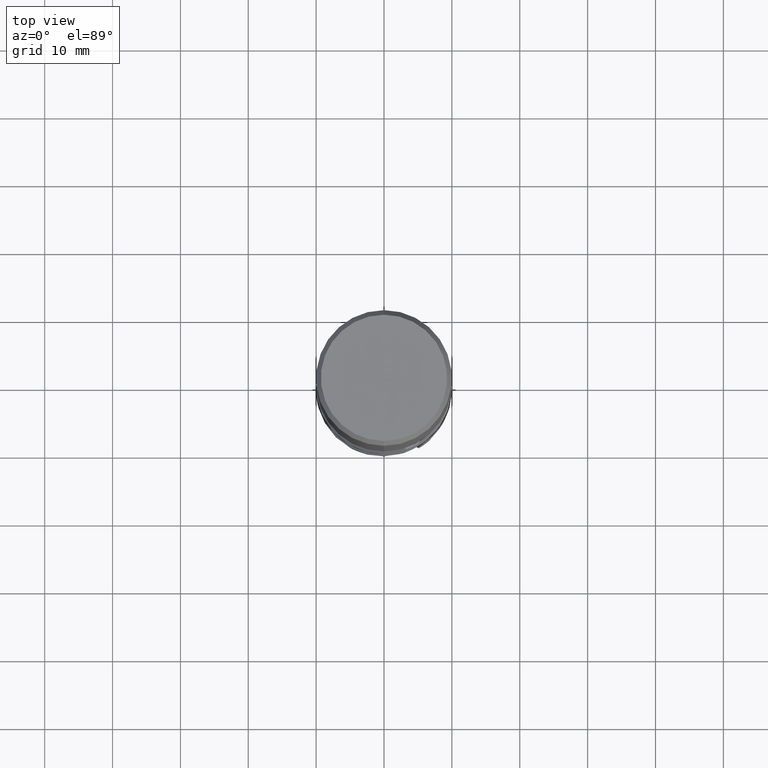
[diagram: clean part render]
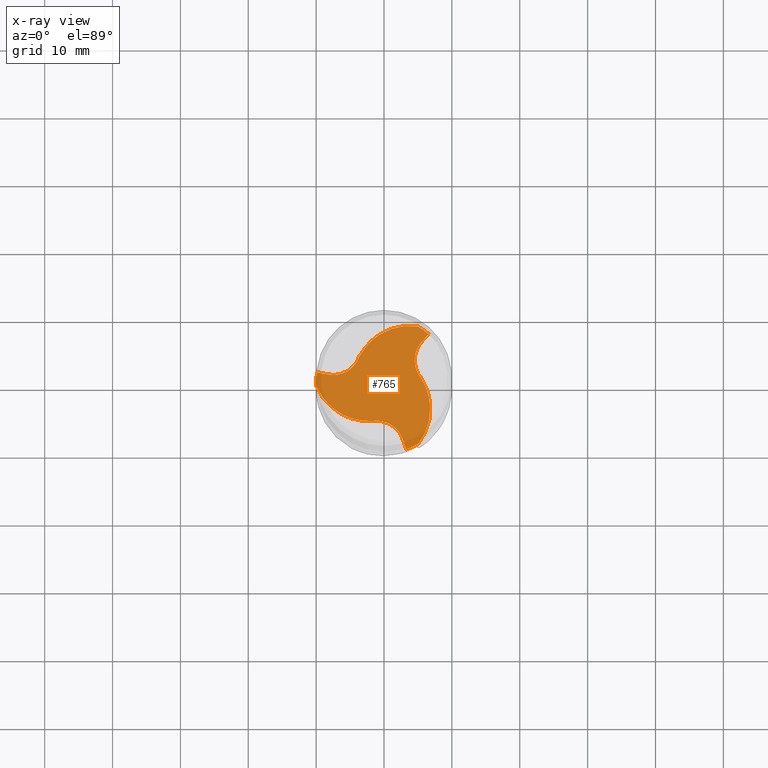
[diagram: x-ray — body ghosted, one internal face saturated and labeled with its STEP entity id]
A machine part, top view, then the same camera in x-ray: the body is ghosted and one INTERNAL B-rep face — a face not visible from any outside direction — is saturated and labeled: STEP entity #765.
In plain terms, the highlighted planar face has unit normal (-0, 0, 1).
Its self-contained STEP definition (entity closure, byte-faithful):
#451=VERTEX_POINT('',#1306);
#463=VERTEX_POINT('',#1319);
#483=EDGE_CURVE('',#451,#1105,#1341,.T.);
#517=VERTEX_POINT('',#1377);
#535=EDGE_CURVE('',#1041,#713,#1397,.T.);
#559=VERTEX_POINT('',#1424);
#569=VERTEX_POINT('',#1436);
#615=EDGE_CURVE('',#1111,#947,#1487,.T.);
#629=EDGE_CURVE('',#1041,#1241,#1501,.T.);
#673=EDGE_CURVE('',#733,#1219,#1547,.T.);
#675=EDGE_CURVE('',#761,#559,#1549,.T.);
#681=EDGE_CURVE('',#997,#1105,#1556,.T.);
#713=VERTEX_POINT('',#1590);
#733=VERTEX_POINT('',#1611);
#749=EDGE_CURVE('',#1285,#1165,#1630,.T.);
#761=VERTEX_POINT('',#1645);
#765=ADVANCED_FACE('',(#1649),#1650,.T.);
#769=VERTEX_POINT('',#1654);
#771=EDGE_CURVE('',#463,#559,#1656,.T.);
#819=EDGE_CURVE('',#1081,#569,#1708,.T.);
#839=EDGE_CURVE('',#517,#1111,#1729,.T.);
#847=EDGE_CURVE('',#713,#517,#1737,.T.);
#849=EDGE_CURVE('',#997,#985,#1739,.T.);
#907=EDGE_CURVE('',#1219,#451,#1801,.T.);
#919=EDGE_CURVE('',#1165,#1241,#1814,.T.);
#921=EDGE_CURVE('',#995,#769,#1816,.T.);
#947=VERTEX_POINT('',#1846);
#953=EDGE_CURVE('',#947,#463,#1852,.T.);
#955=EDGE_CURVE('',#985,#995,#1854,.T.);
#985=VERTEX_POINT('',#1888);
#995=VERTEX_POINT('',#1898);
#997=VERTEX_POINT('',#1900);
#1021=EDGE_CURVE('',#761,#1081,#1926,.T.);
#1041=VERTEX_POINT('',#1949);
#1061=EDGE_CURVE('',#769,#1285,#1971,.T.);
#1081=VERTEX_POINT('',#1991);
#1105=VERTEX_POINT('',#2016);
#1111=VERTEX_POINT('',#2022);
#1119=EDGE_CURVE('',#569,#733,#2030,.T.);
#1165=VERTEX_POINT('',#2080);
#1219=VERTEX_POINT('',#2144);
#1241=VERTEX_POINT('',#2169);
#1285=VERTEX_POINT('',#2217);
#1306=CARTESIAN_POINT('',(2.7300086189695,-7.91065309437765,-64.0000000000002));
#1319=CARTESIAN_POINT('',(-8.21583084974177,1.59106973061077,-64.0000000000002));
#1341=B_SPLINE_CURVE_WITH_KNOTS('',3,(#2838,#2839,#2840,#2841,#2842,#2843),.UNSPECIFIED.,.F.,.F.,(4,2,4),(0.0,1.01666660342828,2.03333320686932),.UNSPECIFIED.);
#1377=CARTESIAN_POINT('',(-3.49718633586731,4.43924249761088,-64.0));
#1397=B_SPLINE_CURVE_WITH_KNOTS('',3,(#3092,#3093,#3094,#3095,#3096,#3097,#3098,#3099,#3100,#3101),.UNSPECIFIED.,.F.,.F.,(4,2,2,2,4),(0.0,3.22986351059494,6.45946003039667,8.89953402413643,11.3395172599836),.UNSPECIFIED.);
#1424=CARTESIAN_POINT('',(-9.8195921515313,1.8903994254085,-64.0));
#1436=CARTESIAN_POINT('',(-2.09590360855684,-5.24827345743435,-64.0));
#1487=B_SPLINE_CURVE_WITH_KNOTS('',3,(#4205,#4206,#4207,#4208,#4209,#4210),.UNSPECIFIED.,.F.,.F.,(4,2,4),(0.0,0.0893540159691928,0.17870814020248),.UNSPECIFIED.);
#1501=CIRCLE('',#4231,9.9999);
#1547=B_SPLINE_CURVE_WITH_KNOTS('',3,(#4410,#4411,#4412,#4413,#4414,#4415),.UNSPECIFIED.,.F.,.F.,(4,2,4),(0.0,0.0906330425269509,0.181266222447774),.UNSPECIFIED.);
#1549=CIRCLE('',#4418,9.9999);
#1556=CIRCLE('',#4426,9.9999);
#1590=CARTESIAN_POINT('',(-2.81208900009983,5.49808554306712,-64.0));
#1611=CARTESIAN_POINT('',(-2.05098349082188,-5.26560530070317,-64.0));
#1630=B_SPLINE_CURVE_WITH_KNOTS('',3,(#4669,#4670,#4671,#4672,#4673,#4674,#4675,#4676,#4677,#4678),.UNSPECIFIED.,.F.,.F.,(4,2,2,2,4),(0.0,1.58917941689798,3.17825831562223,4.54299936996215,5.90770903782028),.UNSPECIFIED.);
#1645=CARTESIAN_POINT('',(-9.99988957941516,-0.0144363951062529,-64.0));
#1649=FACE_OUTER_BOUND('',#4767,.T.);
#1650=PLANE('',#4768);
#1654=CARTESIAN_POINT('',(5.58563970212482,0.856598844539112,-64.0));
#1656=B_SPLINE_CURVE_WITH_KNOTS('',3,(#4776,#4777,#4778,#4779),.UNSPECIFIED.,.F.,.F.,(4,4),(0.0,1.86574099658228),.UNSPECIFIED.);
#1708=B_SPLINE_CURVE_WITH_KNOTS('',3,(#5498,#5499,#5500,#5501,#5502,#5503,#5504,#5505,#5506,#5507),.UNSPECIFIED.,.F.,.F.,(4,2,2,2,4),(0.0,3.22977012451254,6.45931074627802,8.40218728265527,10.3450094163586),.UNSPECIFIED.);
#1729=B_SPLINE_CURVE_WITH_KNOTS('',3,(#5585,#5586,#5587,#5588,#5589,#5590),.UNSPECIFIED.,.F.,.F.,(4,2,4),(0.0,0.0893540159691928,0.17870814020248),.UNSPECIFIED.);
#1737=B_SPLINE_CURVE_WITH_KNOTS('',3,(#5603,#5604,#5605,#5606,#5607,#5608,#5609,#5610,#5611,#5612),.UNSPECIFIED.,.F.,.F.,(4,2,2,2,4),(0.0,3.22986351059494,6.45946003039667,8.89953402413643,11.3395172599836),.UNSPECIFIED.);
#1739=B_SPLINE_CURVE_WITH_KNOTS('',3,(#5615,#5616,#5617,#5618,#5619,#5620,#5621,#5622,#5623,#5624),.UNSPECIFIED.,.F.,.F.,(4,2,2,2,4),(0.0,3.22986351059497,6.45946003039672,8.90170572673343,11.3438605196778),.UNSPECIFIED.);
#1801=B_SPLINE_CURVE_WITH_KNOTS('',3,(#6707,#6708,#6709,#6710,#6711,#6712,#6713,#6714,#6715,#6716),.UNSPECIFIED.,.F.,.F.,(4,2,2,2,4),(0.0,1.589179416898,3.1782583156224,4.54299936996206,5.90770903782028),.UNSPECIFIED.);
#1814=B_SPLINE_CURVE_WITH_KNOTS('',3,(#6794,#6795,#6796,#6797,#6798,#6799),.UNSPECIFIED.,.F.,.F.,(4,2,4),(0.0,1.01666660342828,2.03333320686931),.UNSPECIFIED.);
#1816=B_SPLINE_CURVE_WITH_KNOTS('',3,(#6802,#6803,#6804,#6805,#6806,#6807),.UNSPECIFIED.,.F.,.F.,(4,2,4),(0.0,0.0906330425985399,0.181266222590356),.UNSPECIFIED.);
#1846=CARTESIAN_POINT('',(-3.59254203098114,4.36123755322661,-64.0000000000142));
#1852=B_SPLINE_CURVE_WITH_KNOTS('',3,(#6870,#6871,#6872,#6873,#6874,#6875,#6876,#6877,#6878,#6879),.UNSPECIFIED.,.F.,.F.,(4,2,2,2,4),(0.0,1.58917941689797,3.1782583156222,4.54299936996219,5.9077090378205),.UNSPECIFIED.);
#1854=B_SPLINE_CURVE_WITH_KNOTS('',3,(#6882,#6883,#6884,#6885,#6886,#6887,#6888,#6889,#6890,#6891),.UNSPECIFIED.,.F.,.F.,(4,2,2,2,4),(0.0,3.22986351059497,6.45946003039672,8.90170572673343,11.3438605196778),.UNSPECIFIED.);
#1888=CARTESIAN_POINT('',(6.16752625204502,-0.313702258595719,-64.0));
#1898=CARTESIAN_POINT('',(5.59308994442417,0.809030959823448,-64.0));
#1900=CARTESIAN_POINT('',(5.01244707460865,-8.6529402132597,-64.0));
#1926=B_SPLINE_CURVE_WITH_KNOTS('',3,(#7865,#7866,#7867,#7868,#7869,#7870,#7871,#7872,#7873,#7874),.UNSPECIFIED.,.F.,.F.,(4,2,2,2,4),(0.0,3.22977012451254,6.45931074627802,8.40218728265527,10.3450094163586),.UNSPECIFIED.);
#1949=CARTESIAN_POINT('',(4.9874425048065,8.66737660836593,-64.0));
#1971=B_SPLINE_CURVE_WITH_KNOTS('',3,(#8416,#8417,#8418,#8419,#8420,#8421),.UNSPECIFIED.,.F.,.F.,(4,2,4),(0.0,0.0906330425985399,0.181266222590356),.UNSPECIFIED.);
#1991=CARTESIAN_POINT('',(-3.35543725163365,-5.18438328342402,-64.0));
#2016=CARTESIAN_POINT('',(3.27266215006238,-9.44921597073266,-64.0));
#2022=CARTESIAN_POINT('',(-3.53465621132542,4.40900645612513,-64.0));
#2030=B_SPLINE_CURVE_WITH_KNOTS('',3,(#8568,#8569,#8570,#8571,#8572,#8573),.UNSPECIFIED.,.F.,.F.,(4,2,4),(0.0,0.0906330425269509,0.181266222447774),.UNSPECIFIED.);
#2080=CARTESIAN_POINT('',(5.48582223077228,6.31958336376688,-64.0000000000002));
#2144=CARTESIAN_POINT('',(-1.98067149754237,-5.29185143960632,-64.0000000000142));
#2169=CARTESIAN_POINT('',(6.54693000146895,7.55881654532413,-64.0));
#2217=CARTESIAN_POINT('',(5.57321352852351,0.930613886379684,-64.0000000000142));
#2838=CARTESIAN_POINT('',(2.73000861906407,-7.91065309434429,-64.0));
#2839=CARTESIAN_POINT('',(2.84273013667982,-8.23024584174566,-64.0));
#2840=CARTESIAN_POINT('',(2.95545129064844,-8.54983871740693,-64.0));
#2841=CARTESIAN_POINT('',(3.18089287129208,-9.18902472525072,-64.0));
#2842=CARTESIAN_POINT('',(3.29361329796726,-9.50861785743365,-64.0));
#2843=CARTESIAN_POINT('',(3.40633336099475,-9.82821111787435,-64.0));
#3092=CARTESIAN_POINT('',(6.09391311475008,8.42365911645158,-64.0));
#3093=CARTESIAN_POINT('',(5.0608339545354,8.72674424120915,-64.0));
#3094=CARTESIAN_POINT('',(3.97843525373142,8.82515361205992,-64.0));
#3095=CARTESIAN_POINT('',(1.83692942871722,8.60152069684657,-64.0));
#3096=CARTESIAN_POINT('',(0.798299623470999,8.28165146227605,-64.0));
#3097=CARTESIAN_POINT('',(-0.866117265947185,7.38644786098299,-64.0));
#3098=CARTESIAN_POINT('',(-1.52167456199763,6.89756761046032,-64.0));
#3099=CARTESIAN_POINT('',(-2.66882435685572,5.74424816059353,-64.0));
#3100=CARTESIAN_POINT('',(-3.15416698174052,5.08610519517531,-64.0));
#3101=CARTESIAN_POINT('',(-3.53559140433677,4.36776271819194,-64.0));
#4205=CARTESIAN_POINT('',(-3.453668853612,4.47370001485642,-64.0));
#4206=CARTESIAN_POINT('',(-3.47711092715809,4.45532623262751,-64.0));
#4207=CARTESIAN_POINT('',(-3.50040637860147,4.4367661482775,-63.9999999994793));
#4208=CARTESIAN_POINT('',(-3.54669963801857,4.39927687996045,-63.9999999994793));
#4209=CARTESIAN_POINT('',(-3.56969671216023,4.38034828952316,-64.0));
#4210=CARTESIAN_POINT('',(-3.59254203099374,4.36123755321618,-64.0));
#4231=AXIS2_PLACEMENT_3D('',#10045,#10046,#10047);
#4410=CARTESIAN_POINT('',(-2.14987645627778,-5.22685987332016,-64.0));
#4411=CARTESIAN_POINT('',(-2.12185285242296,-5.23814628127441,-64.0));
#4412=CARTESIAN_POINT('',(-2.09373858226544,-5.24920625137019,-63.9999999994568));
#4413=CARTESIAN_POINT('',(-2.03733416377074,-5.27087116969954,-63.9999999994568));
#4414=CARTESIAN_POINT('',(-2.00904493499391,-5.28147576730674,-63.9999994484681));
#4415=CARTESIAN_POINT('',(-1.98067119833996,-5.29185155072121,-63.9999994484681));
#4418=AXIS2_PLACEMENT_3D('',#10075,#10076,#10077);
#4426=AXIS2_PLACEMENT_3D('',#10094,#10095,#10096);
#4669=CARTESIAN_POINT('',(5.57321352859459,0.930613886463289,-64.0));
#4670=CARTESIAN_POINT('',(5.21587237988198,1.32166048073492,-64.0));
#4671=CARTESIAN_POINT('',(4.93832401989372,1.77876888817162,-64.0));
#4672=CARTESIAN_POINT('',(4.57408834673259,2.77360575847378,-64.0));
#4673=CARTESIAN_POINT('',(4.49086859994225,3.30182544961237,-64.0));
#4674=CARTESIAN_POINT('',(4.52874218557937,4.28570029935903,-64.0));
#4675=CARTESIAN_POINT('',(4.62238345379204,4.73413468677527,-64.0));
#4676=CARTESIAN_POINT('',(4.95416104173227,5.58129590723879,-64.0));
#4677=CARTESIAN_POINT('',(5.18995320677013,5.97404629662331,-64.0));
#4678=CARTESIAN_POINT('',(5.48582223077208,6.31958336376705,-64.0));
#4767=EDGE_LOOP('',(#10222,#10223,#10224,#10225,#10226,#10227,#10228,#10229,#10230,#10231,#10232,#10233,#10234,#10235,#10236,#10237,#10238,#10239,#10240,#10241,#10242));
#4768=AXIS2_PLACEMENT_3D('',#10243,#10244,#10245);
#4776=CARTESIAN_POINT('',(-8.21583084976017,1.59106973051216,-64.0));
#4777=CARTESIAN_POINT('',(-8.82718747143766,1.70517358014419,-64.0));
#4778=CARTESIAN_POINT('',(-9.43854385485357,1.81927870636452,-64.0));
#4779=CARTESIAN_POINT('',(-10.0499,1.93338510917107,-64.0));
#5498=CARTESIAN_POINT('',(-10.0499,0.115683578278104,-64.0));
#5499=CARTESIAN_POINT('',(-9.67215230436496,-0.892459663482905,-64.0));
#5500=CARTESIAN_POINT('',(-9.10110992881525,-1.81718208867438,-64.0));
#5501=CARTESIAN_POINT('',(-7.63674330286853,-3.39562313974872,-64.0));
#5502=CARTESIAN_POINT('',(-6.75744629672321,-4.03426533839062,-64.0));
#5503=CARTESIAN_POINT('',(-5.19276021661203,-4.75842380914874,-64.0));
#5504=CARTESIAN_POINT('',(-4.57509802166371,-4.96043343226245,-64.0));
#5505=CARTESIAN_POINT('',(-3.30535742703868,-5.21613484985493,-64.0));
#5506=CARTESIAN_POINT('',(-2.65766784499353,-5.26894718883218,-64.0));
#5507=CARTESIAN_POINT('',(-2.01048065764231,-5.24563898275676,-64.0));
#5585=CARTESIAN_POINT('',(-3.453668853612,4.47370001485642,-64.0));
#5586=CARTESIAN_POINT('',(-3.47711092715809,4.45532623262751,-64.0));
#5587=CARTESIAN_POINT('',(-3.50040637860147,4.4367661482775,-63.9999999994793));
#5588=CARTESIAN_POINT('',(-3.54669963801857,4.39927687996045,-63.9999999994793));
#5589=CARTESIAN_POINT('',(-3.56969671216023,4.38034828952316,-64.0));
#5590=CARTESIAN_POINT('',(-3.59254203099374,4.36123755321618,-64.0));
#5603=CARTESIAN_POINT('',(6.09391311475008,8.42365911645158,-64.0));
#5604=CARTESIAN_POINT('',(5.0608339545354,8.72674424120915,-64.0));
#5605=CARTESIAN_POINT('',(3.97843525373142,8.82515361205992,-64.0));
#5606=CARTESIAN_POINT('',(1.83692942871722,8.60152069684657,-64.0));
#5607=CARTESIAN_POINT('',(0.798299623470999,8.28165146227605,-64.0));
#5608=CARTESIAN_POINT('',(-0.866117265947185,7.38644786098299,-64.0));
#5609=CARTESIAN_POINT('',(-1.52167456199763,6.89756761046032,-64.0));
#5610=CARTESIAN_POINT('',(-2.66882435685572,5.74424816059353,-64.0));
#5611=CARTESIAN_POINT('',(-3.15416698174052,5.08610519517531,-64.0));
#5612=CARTESIAN_POINT('',(-3.53559140433677,4.36776271819194,-64.0));
#5615=CARTESIAN_POINT('',(4.24814623029243,-9.4893131240545,-64.0));
#5616=CARTESIAN_POINT('',(5.02716522794901,-8.74618288956707,-64.0));
#5617=CARTESIAN_POINT('',(5.65358959347817,-7.85800280307296,-64.0));
#5618=CARTESIAN_POINT('',(6.53067072028811,-5.89158789865172,-64.0));
#5619=CARTESIAN_POINT('',(6.77297073988409,-4.83217348489557,-64.0));
#5620=CARTESIAN_POINT('',(6.8299319342956,-2.94242080447929,-64.0));
#5621=CARTESIAN_POINT('',(6.73413566328827,-2.1295332573613,-64.0));
#5622=CARTESIAN_POINT('',(6.30811759197578,-0.558126508230556,-64.0));
#5623=CARTESIAN_POINT('',(5.98023202031748,0.191809740080986,-64.0));
#5624=CARTESIAN_POINT('',(5.54809694685604,0.881692168225575,-64.0));
#6707=CARTESIAN_POINT('',(-1.98067149750551,-5.29185143970967,-64.0));
#6708=CARTESIAN_POINT('',(-1.46334463844658,-5.17790822424286,-64.0));
#6709=CARTESIAN_POINT('',(-0.928702965328825,-5.16609849743266,-64.0));
#6710=CARTESIAN_POINT('',(0.114968873554869,-5.34807958666168,-64.0));
#6711=CARTESIAN_POINT('',(0.614030418255183,-5.54011901741404,-64.0));
#6712=CARTESIAN_POINT('',(1.44715423946167,-6.06485592958143,-64.0));
#6713=CARTESIAN_POINT('',(1.78868917678843,-6.37016884040432,-64.0));
#6714=CARTESIAN_POINT('',(2.35646352084092,-7.08107727019886,-64.0));
#6715=CARTESIAN_POINT('',(2.5786992528751,-7.48165446982719,-64.0));
#6716=CARTESIAN_POINT('',(2.73000861896974,-7.91065309437756,-64.0));
#6794=CARTESIAN_POINT('',(5.48582223069611,6.3195833638321,-64.0));
#6795=CARTESIAN_POINT('',(5.70623691000308,6.57699943534116,-64.0));
#6796=CARTESIAN_POINT('',(5.92665188220996,6.8344152560525,-64.0));
#6797=CARTESIAN_POINT('',(6.36748241242442,7.34924639588111,-64.0));
#6798=CARTESIAN_POINT('',(6.58789797043229,7.60666171499871,-64.0));
#6799=CARTESIAN_POINT('',(6.80831382133849,7.86407678331704,-64.0));
#6802=CARTESIAN_POINT('',(5.60153166047584,0.751582310383038,-64.0));
#6803=CARTESIAN_POINT('',(5.59729417455171,0.781494667227761,-64.0));
#6804=CARTESIAN_POINT('',(5.59281525453803,0.811372324464613,-63.9999999994568));
#6805=CARTESIAN_POINT('',(5.58337541492804,0.871052442979116,-63.9999999994568));
#6806=CARTESIAN_POINT('',(5.57841465146062,0.900853932580634,-63.9999994484681));
#6807=CARTESIAN_POINT('',(5.57321347515063,0.930614201054026,-63.9999994484681));
#6870=CARTESIAN_POINT('',(-3.59254203108909,4.36123755324637,-64.0));
#6871=CARTESIAN_POINT('',(-3.7525277414354,3.85624774350792,-64.0));
#6872=CARTESIAN_POINT('',(-4.00962105456489,3.38732960926104,-64.0));
#6873=CARTESIAN_POINT('',(-4.6890572202874,2.57447382818788,-64.0));
#6874=CARTESIAN_POINT('',(-5.10489901819741,2.23829356780164,-64.0));
#6875=CARTESIAN_POINT('',(-5.97589642504122,1.77915563022245,-64.0));
#6876=CARTESIAN_POINT('',(-6.41107263058051,1.6360341536291,-64.0));
#6877=CARTESIAN_POINT('',(-7.31062456257306,1.49978136295992,-64.0));
#6878=CARTESIAN_POINT('',(-7.76865245964521,1.50760817320377,-64.0));
#6879=CARTESIAN_POINT('',(-8.21583084974182,1.5910697306105,-64.0));
#6882=CARTESIAN_POINT('',(4.24814623029243,-9.4893131240545,-64.0));
#6883=CARTESIAN_POINT('',(5.02716522794901,-8.74618288956707,-64.0));
#6884=CARTESIAN_POINT('',(5.65358959347817,-7.85800280307296,-64.0));
#6885=CARTESIAN_POINT('',(6.53067072028811,-5.89158789865172,-64.0));
#6886=CARTESIAN_POINT('',(6.77297073988409,-4.83217348489557,-64.0));
#6887=CARTESIAN_POINT('',(6.8299319342956,-2.94242080447929,-64.0));
#6888=CARTESIAN_POINT('',(6.73413566328827,-2.1295332573613,-64.0));
#6889=CARTESIAN_POINT('',(6.30811759197578,-0.558126508230556,-64.0));
#6890=CARTESIAN_POINT('',(5.98023202031748,0.191809740080986,-64.0));
#6891=CARTESIAN_POINT('',(5.54809694685604,0.881692168225575,-64.0));
#7865=CARTESIAN_POINT('',(-10.0499,0.115683578278104,-64.0));
#7866=CARTESIAN_POINT('',(-9.67215230436496,-0.892459663482905,-64.0));
#7867=CARTESIAN_POINT('',(-9.10110992881525,-1.81718208867438,-64.0));
#7868=CARTESIAN_POINT('',(-7.63674330286853,-3.39562313974872,-64.0));
#7869=CARTESIAN_POINT('',(-6.75744629672321,-4.03426533839062,-64.0));
#7870=CARTESIAN_POINT('',(-5.19276021661203,-4.75842380914874,-64.0));
#7871=CARTESIAN_POINT('',(-4.57509802166371,-4.96043343226245,-64.0));
#7872=CARTESIAN_POINT('',(-3.30535742703868,-5.21613484985493,-64.0));
#7873=CARTESIAN_POINT('',(-2.65766784499353,-5.26894718883218,-64.0));
#7874=CARTESIAN_POINT('',(-2.01048065764231,-5.24563898275676,-64.0));
#8416=CARTESIAN_POINT('',(5.60153166047584,0.751582310383038,-64.0));
#8417=CARTESIAN_POINT('',(5.59729417455171,0.781494667227761,-64.0));
#8418=CARTESIAN_POINT('',(5.59281525453803,0.811372324464613,-63.9999999994568));
#8419=CARTESIAN_POINT('',(5.58337541492804,0.871052442979116,-63.9999999994568));
#8420=CARTESIAN_POINT('',(5.57841465146062,0.900853932580634,-63.9999994484681));
#8421=CARTESIAN_POINT('',(5.57321347515063,0.930614201054026,-63.9999994484681));
#8568=CARTESIAN_POINT('',(-2.14987645627778,-5.22685987332016,-64.0));
#8569=CARTESIAN_POINT('',(-2.12185285242296,-5.23814628127441,-64.0));
#8570=CARTESIAN_POINT('',(-2.09373858226544,-5.24920625137019,-63.9999999994568));
#8571=CARTESIAN_POINT('',(-2.03733416377074,-5.27087116969954,-63.9999999994568));
#8572=CARTESIAN_POINT('',(-2.00904493499391,-5.28147576730674,-63.9999994484681));
#8573=CARTESIAN_POINT('',(-1.98067119833996,-5.29185155072121,-63.9999994484681));
#10045=CARTESIAN_POINT('',(0.0,0.0,-64.0));
#10046=DIRECTION('',(0.0,0.0,-1.0));
#10047=DIRECTION('',(0.0,1.0,0.0));
#10075=CARTESIAN_POINT('',(0.0,0.0,-64.0));
#10076=DIRECTION('',(0.0,0.0,-1.0));
#10077=DIRECTION('',(0.0,1.0,0.0));
#10094=CARTESIAN_POINT('',(0.0,0.0,-64.0));
#10095=DIRECTION('',(0.0,0.0,-1.0));
#10096=DIRECTION('',(0.0,1.0,0.0));
#10222=ORIENTED_EDGE('',*,*,#1061,.T.);
#10223=ORIENTED_EDGE('',*,*,#749,.T.);
#10224=ORIENTED_EDGE('',*,*,#919,.T.);
#10225=ORIENTED_EDGE('',*,*,#629,.F.);
#10226=ORIENTED_EDGE('',*,*,#535,.T.);
#10227=ORIENTED_EDGE('',*,*,#847,.T.);
#10228=ORIENTED_EDGE('',*,*,#839,.T.);
#10229=ORIENTED_EDGE('',*,*,#615,.T.);
#10230=ORIENTED_EDGE('',*,*,#953,.T.);
#10231=ORIENTED_EDGE('',*,*,#771,.T.);
#10232=ORIENTED_EDGE('',*,*,#675,.F.);
#10233=ORIENTED_EDGE('',*,*,#1021,.T.);
#10234=ORIENTED_EDGE('',*,*,#819,.T.);
#10235=ORIENTED_EDGE('',*,*,#1119,.T.);
#10236=ORIENTED_EDGE('',*,*,#673,.T.);
#10237=ORIENTED_EDGE('',*,*,#907,.T.);
#10238=ORIENTED_EDGE('',*,*,#483,.T.);
#10239=ORIENTED_EDGE('',*,*,#681,.F.);
#10240=ORIENTED_EDGE('',*,*,#849,.T.);
#10241=ORIENTED_EDGE('',*,*,#955,.T.);
#10242=ORIENTED_EDGE('',*,*,#921,.T.);
#10243=CARTESIAN_POINT('',(0.0,4.99995,-64.0));
#10244=DIRECTION('',(-0.0,0.0,1.0));
#10245=DIRECTION('',(0.0,-1.0,0.0));